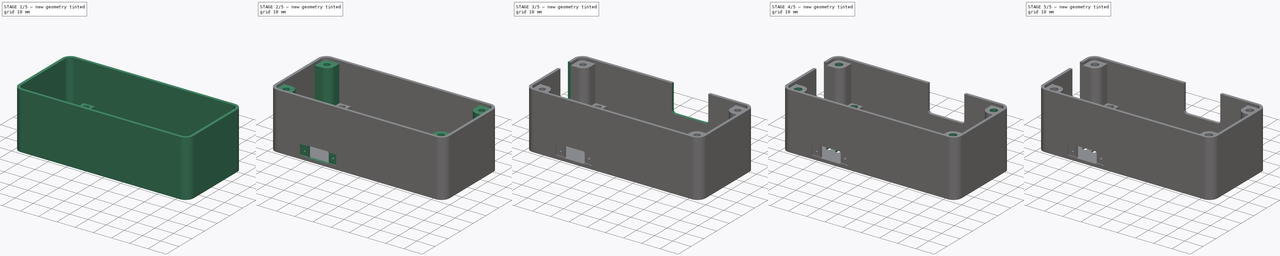
[diagram: build sequence overview — one tinted view per stage of 5, left to right]
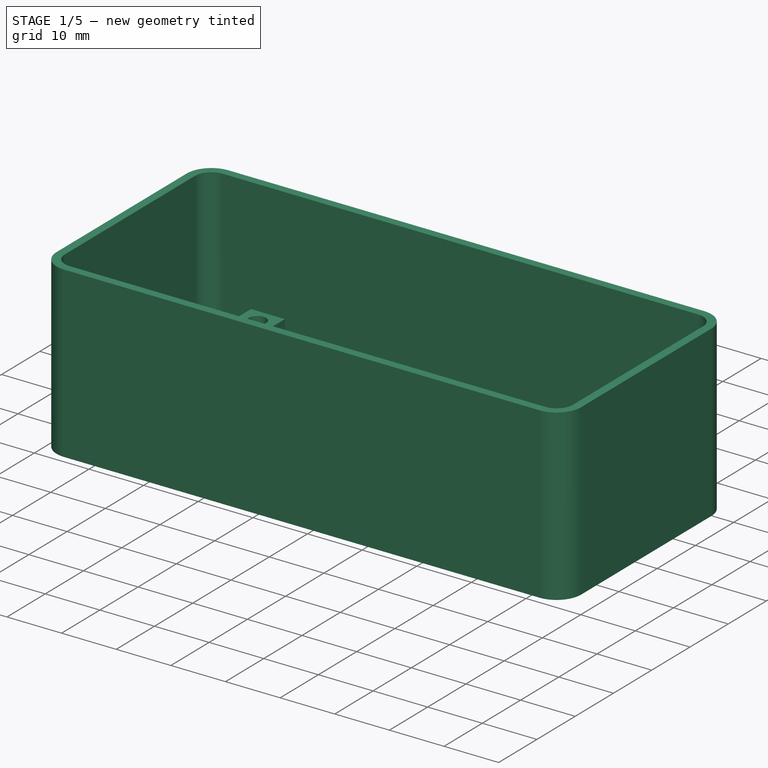
[diagram: stage 1 of 5 — iso view after this stage's code; geometry added in this stage tinted green]
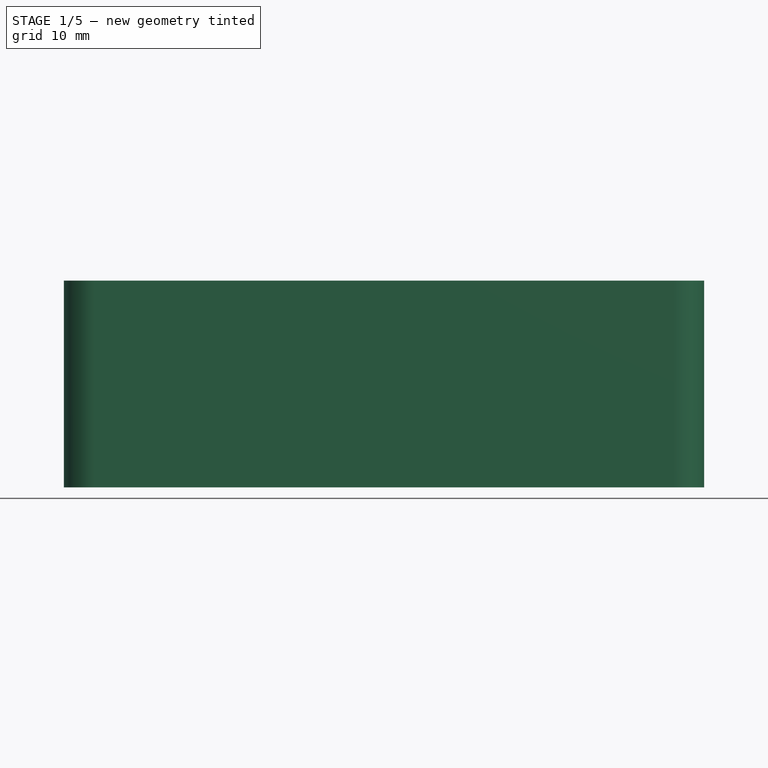
[diagram: stage 1 of 5 — front view after this stage's code; geometry added in this stage tinted green]
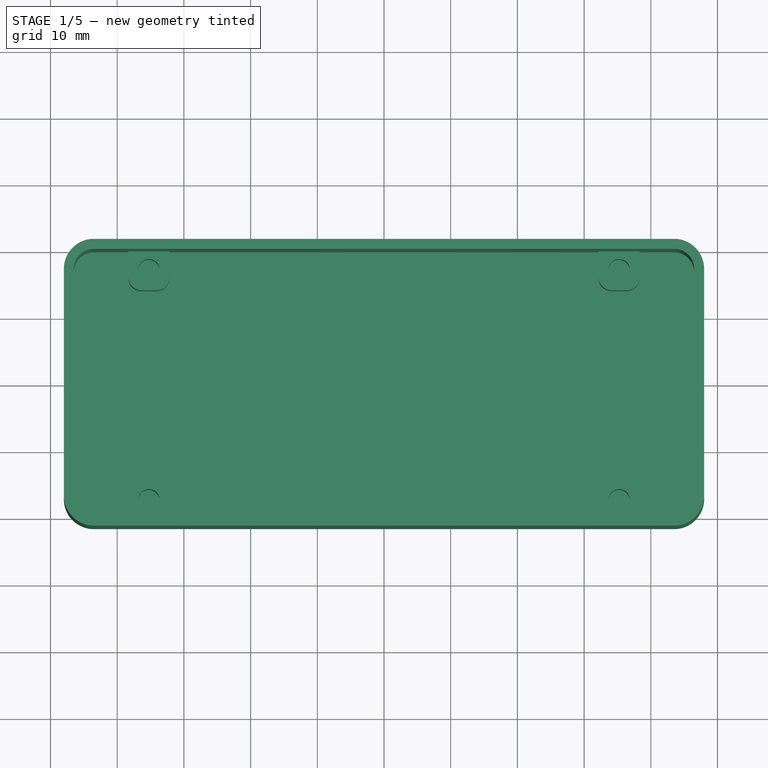
[diagram: stage 1 of 5 — top view after this stage's code; geometry added in this stage tinted green]
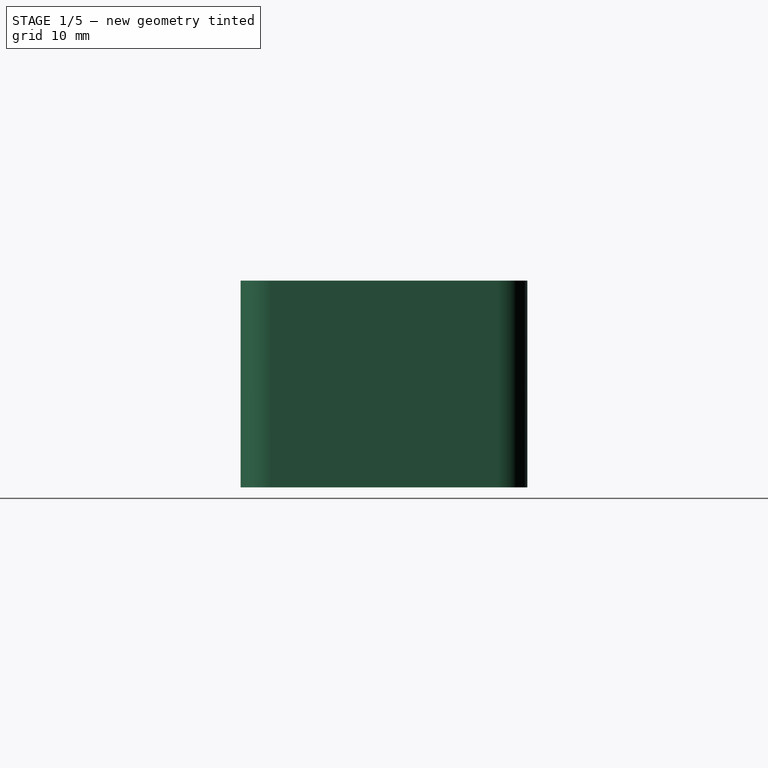
[diagram: stage 1 of 5 — right view after this stage's code; geometry added in this stage tinted green]
FCSTD DOCUMENT  (FreeCAD 0.20R29410 (Git))
Label: Bottom
License: All rights reserved
LicenseURL: http://en.wikipedia.org/wiki/All_rights_reserved
objects: Sketcher::SketchObject×17, PartDesign::Pocket×12, PartDesign::Pad×4, PartDesign::LinearPattern×1, PartDesign::Body×1
note: 51 computed .brp shape members not serialized (recipe doc carries the construction recipe); baked Part::Feature solids carry a one-line shape summary decoded from their .brp

FEATURE [Sketcher::SketchObject] Sketch
  FullyConstrained = true
  MapMode = 5
  Support = -> [XY_Plane]
  sketch-geometry (20):
    g0: LineSegment StartX=-35 StartY=20 StartZ=0 EndX=35 EndY=20 EndZ=0
    g1: LineSegment StartX=38 StartY=17 StartZ=0 EndX=38 EndY=-17 EndZ=0
    g2: LineSegment StartX=35 StartY=-20 StartZ=0 EndX=-35 EndY=-20 EndZ=0
    g3: LineSegment StartX=-38 StartY=-17 StartZ=0 EndX=-38 EndY=17 EndZ=0
    g4: ArcOfCircle CenterX=-35 CenterY=17 CenterZ=0 NormalX=0 NormalY=0 NormalZ=1 AngleXU=0 Radius=3 StartAngle=1.5708 EndAngle=3.14159
    g5: ArcOfCircle CenterX=35 CenterY=17 CenterZ=0 NormalX=0 NormalY=0 NormalZ=1 AngleXU=0 Radius=3 StartAngle=0 EndAngle=1.5708
    g6: ArcOfCircle CenterX=35 CenterY=-17 CenterZ=0 NormalX=0 NormalY=0 NormalZ=1 AngleXU=0 Radius=3 StartAngle=4.71239 EndAngle=6.28319
    g7: ArcOfCircle CenterX=-35 CenterY=-17 CenterZ=0 NormalX=0 NormalY=0 NormalZ=1 AngleXU=0 Radius=3 StartAngle=3.14159 EndAngle=4.71239
    g8: LineSegment StartX=-43.5 StartY=21.5 StartZ=0 EndX=43.5 EndY=21.5 EndZ=0
    g9: LineSegment StartX=48 StartY=17 StartZ=0 EndX=48 EndY=-17 EndZ=0
    g10: LineSegment StartX=43.5 StartY=-21.5 StartZ=0 EndX=-43.5 EndY=-21.5 EndZ=0
    g11: LineSegment StartX=-48 StartY=-17 StartZ=0 EndX=-48 EndY=17 EndZ=0
    g12: ArcOfCircle CenterX=43.5 CenterY=17 CenterZ=0 NormalX=0 NormalY=0 NormalZ=1 AngleXU=0 Radius=4.5 StartAngle=0 EndAngle=1.5708
    g13: GeomPoint X=48 Y=21.5 Z=0
    g14: ArcOfCircle CenterX=43.5 CenterY=-17 CenterZ=0 NormalX=0 NormalY=0 NormalZ=1 AngleXU=0 Radius=4.5 StartAngle=4.71239 EndAngle=6.28319
    g15: GeomPoint X=48 Y=-21.5 Z=0
    g16: ArcOfCircle CenterX=-43.5 CenterY=-17 CenterZ=0 NormalX=0 NormalY=0 NormalZ=1 AngleXU=0 Radius=4.5 StartAngle=3.14159 EndAngle=4.71239
    g17: GeomPoint X=-48 Y=-21.5 Z=0
    g18: ArcOfCircle CenterX=-43.5 CenterY=17 CenterZ=0 NormalX=0 NormalY=0 NormalZ=1 AngleXU=0 Radius=4.5 StartAngle=1.5708 EndAngle=3.14159
    g19: GeomPoint X=-48 Y=21.5 Z=0
  constraints (46):
    c: Horizontal(g0)
    c: Horizontal(g2)
    c: Vertical(g1)
    c: Vertical(g3)
    c: Tangent(g3,g4) = 1.5708
    c: Tangent(g0,g4) = 1.5708
    c: Tangent(g0,g5) = 1.5708
    c: Tangent(g1,g5) = 1.5708
    c: Tangent(g2,g6) = 1.5708
    c: Tangent(g1,g6) = 1.5708
    c: Tangent(g3,g7) = 1.5708
    c: Tangent(g2,g7) = 1.5708
    c: Equal(g7,g4)
    c: Equal(g4,g5)
    c: Equal(g5,g6)
    c: Radius(g5) = 3
    c: Symmetric(g4,g6,g-1)
    c: DistanceY(g2,g0) = 40
    c: DistanceX(g3,g1) = 76
    c: Horizontal(g8)
    c: Horizontal(g10)
    c: Vertical(g9)
    c: Vertical(g11)
    c: Symmetric(g19,g15,g-1)
    c: PointOnObject(g13,g8)
    c: PointOnObject(g13,g9)
    c: Tangent(g8,g12) = 1.5708
    c: Tangent(g9,g12) = 1.5708
    c: PointOnObject(g15,g9)
    c: PointOnObject(g15,g10)
    c: Tangent(g9,g14) = 1.5708
    c: Tangent(g10,g14) = 1.5708
    c: PointOnObject(g17,g11)
    c: PointOnObject(g17,g10)
    c: Tangent(g11,g16) = 1.5708
    c: Tangent(g10,g16) = 1.5708
    c: PointOnObject(g19,g11)
    c: PointOnObject(g19,g8)
    c: Tangent(g11,g18) = 1.5708
    c: Tangent(g8,g18) = 1.5708
    c: Equal(g12,g14)
    c: Equal(g14,g16)
    c: Equal(g16,g18)
    c: DistanceY(g0,g8) = 1.5
    c: Horizontal(g11,g3)
    c: DistanceX(g1,g9) = 10
FEATURE [PartDesign::Pad] Pad
  Direction = (0,0,1)
  Length = 31
  Length2 = 10
  Profile = -> Sketch
  ReferenceAxis = -> Sketch [N_Axis]
  Type = 0
FEATURE [Sketcher::SketchObject] Sketch001
  ExternalGeometry = -> [Pad]
  FullyConstrained = true
  MapMode = 5
  Placement = pos=(0,0,31) rot=(0,0,1;0rad)
  Support = -> [Pad]
  sketch-geometry (12):
    g0: LineSegment StartX=-43.5 StartY=20 StartZ=0 EndX=43.5 EndY=20 EndZ=0
    g1: LineSegment StartX=46.5 StartY=17 StartZ=0 EndX=46.5 EndY=-17 EndZ=0
    g2: LineSegment StartX=43.5 StartY=-20 StartZ=0 EndX=-43.5 EndY=-20 EndZ=0
    g3: LineSegment StartX=-46.5 StartY=-17 StartZ=0 EndX=-46.5 EndY=17 EndZ=0
    g4: ArcOfCircle CenterX=-43.5 CenterY=17 CenterZ=0 NormalX=0 NormalY=0 NormalZ=1 AngleXU=0 Radius=3 StartAngle=1.5708 EndAngle=3.14159
    g5: GeomPoint X=-46.5 Y=20 Z=0
    g6: ArcOfCircle CenterX=-43.5 CenterY=-17 CenterZ=0 NormalX=0 NormalY=0 NormalZ=1 AngleXU=0 Radius=3 StartAngle=3.14159 EndAngle=4.71239
    g7: GeomPoint X=-46.5 Y=-20 Z=0
    g8: ArcOfCircle CenterX=43.5 CenterY=-17 CenterZ=0 NormalX=0 NormalY=0 NormalZ=1 AngleXU=0 Radius=3 StartAngle=4.71239 EndAngle=6.28319
    g9: GeomPoint X=46.5 Y=-20 Z=0
    g10: ArcOfCircle CenterX=43.5 CenterY=17 CenterZ=0 NormalX=0 NormalY=0 NormalZ=1 AngleXU=0 Radius=3 StartAngle=-9e-16 EndAngle=1.5708
    g11: GeomPoint X=46.5 Y=20 Z=0
  constraints (29):
    c: Horizontal(g0)
    c: Horizontal(g2)
    c: Vertical(g1)
    c: Vertical(g3)
    c: Symmetric(g11,g7,g-1)
    c: PointOnObject(g5,g3)
    c: PointOnObject(g5,g0)
    c: Tangent(g3,g4) = 1.5708
    c: Tangent(g0,g4) = 1.5708
    c: PointOnObject(g7,g3)
    c: PointOnObject(g7,g2)
    c: Tangent(g3,g6) = 1.5708
    c: Tangent(g2,g6) = 1.5708
    c: PointOnObject(g9,g2)
    c: PointOnObject(g9,g1)
    c: Tangent(g2,g8) = 1.5708
    c: Tangent(g1,g8) = 1.5708
    c: PointOnObject(g11,g0)
    c: PointOnObject(g11,g1)
    c: Tangent(g0,g10) = 1.5708
    c: Tangent(g1,g10) = 1.5708
    c: Equal(g10,g8)
    c: Equal(g8,g6)
    c: Equal(g6,g4)
    c: Coincident(g10,g-5)
    c: DistanceY(g0,g-5) = 1.5
    c: DistanceY(g2,g0) = 40
    c: DistanceX(g3,g1) = 93
    c: Diameter(g10) = 6
FEATURE [PartDesign::Pocket] Pocket
  BaseFeature = -> Pad
  Direction = (0,0,-1)
  Length = 30
  Length2 = 5
  Profile = -> Sketch001
  ReferenceAxis = -> Sketch001 [N_Axis]
  Type = 0
FEATURE [Sketcher::SketchObject] Sketch002
  ExternalGeometry = -> [Pocket]
  FullyConstrained = true
  MapMode = 5
  Placement = pos=(0,0,1) rot=(0,0,1;0rad)
  Support = -> [Pocket]
  sketch-geometry (39):
    g0: Circle CenterX=35.25 CenterY=17.25 CenterZ=0 NormalX=0 NormalY=0 NormalZ=1 AngleXU=0 Radius=1.6
    g1: Circle CenterX=-35.25 CenterY=17.25 CenterZ=0 NormalX=0 NormalY=0 NormalZ=1 AngleXU=0 Radius=1.6
    g2: Circle CenterX=-35.25 CenterY=-17.25 CenterZ=0 NormalX=0 NormalY=0 NormalZ=1 AngleXU=0 Radius=1.6
    g3: Circle CenterX=35.25 CenterY=-17.25 CenterZ=0 NormalX=0 NormalY=0 NormalZ=1 AngleXU=0 Radius=1.6
    g4: LineSegment StartX=-38.35 StartY=20 StartZ=0 EndX=-32.15 EndY=20 EndZ=0
    g5: LineSegment StartX=-32.15 StartY=20 StartZ=0 EndX=-32.15 EndY=16.15 EndZ=0
    g6: LineSegment StartX=-34.15 StartY=14.15 StartZ=0 EndX=-36.35 EndY=14.15 EndZ=0
    g7: LineSegment StartX=-38.35 StartY=16.15 StartZ=0 EndX=-38.35 EndY=20 EndZ=0
    g8: LineSegment StartX=32.15 StartY=20 StartZ=0 EndX=38.35 EndY=20 EndZ=0
    g9: LineSegment StartX=38.35 StartY=20 StartZ=0 EndX=38.35 EndY=16.15 EndZ=0
    g10: LineSegment StartX=36.35 StartY=14.15 StartZ=0 EndX=34.15 EndY=14.15 EndZ=0
    g11: LineSegment StartX=32.15 StartY=16.15 StartZ=0 EndX=32.15 EndY=20 EndZ=0
    g12: LineSegment StartX=-34.15 StartY=-14.15 StartZ=0 EndX=-36.35 EndY=-14.15 EndZ=0
    g13: LineSegment StartX=-38.35 StartY=-16.15 StartZ=0 EndX=-38.35 EndY=-20 EndZ=0
    g14: LineSegment StartX=-38.35 StartY=-20 StartZ=0 EndX=-32.15 EndY=-20 EndZ=0
    g15: LineSegment StartX=-32.15 StartY=-20 StartZ=0 EndX=-32.15 EndY=-16.15 EndZ=0
    g16: LineSegment StartX=34.15 StartY=-14.15 StartZ=0 EndX=36.35 EndY=-14.15 EndZ=0
    g17: LineSegment StartX=38.35 StartY=-16.15 StartZ=0 EndX=38.35 EndY=-20 EndZ=0
    g18: LineSegment StartX=38.35 StartY=-20 StartZ=0 EndX=32.15 EndY=-20 EndZ=0
    g19: LineSegment StartX=32.15 StartY=-20 StartZ=0 EndX=32.15 EndY=-16.15 EndZ=0
    g20: ArcOfCircle CenterX=-36.35 CenterY=-16.15 CenterZ=0 NormalX=0 NormalY=0 NormalZ=1 AngleXU=0 Radius=2 StartAngle=1.5708 EndAngle=3.14159
    g21: GeomPoint X=-38.35 Y=-14.15 Z=0
    g22: ArcOfCircle CenterX=-34.15 CenterY=-16.15 CenterZ=0 NormalX=0 NormalY=0 NormalZ=1 AngleXU=0 Radius=2 StartAngle=8e-16 EndAngle=1.5708
    g23: GeomPoint X=-32.15 Y=-14.15 Z=0
    g24: ArcOfCircle CenterX=34.15 CenterY=-16.15 CenterZ=0 NormalX=0 NormalY=0 NormalZ=1 AngleXU=0 Radius=2 StartAngle=1.5708 EndAngle=3.14159
    g25: GeomPoint X=32.15 Y=-14.15 Z=0
    g26: ArcOfCircle CenterX=36.35 CenterY=-16.15 CenterZ=0 NormalX=0 NormalY=0 NormalZ=1 AngleXU=0 Radius=2 StartAngle=-9e-16 EndAngle=1.5708
    g27: GeomPoint X=38.35 Y=-14.15 Z=0
    g28: ArcOfCircle CenterX=34.15 CenterY=16.15 CenterZ=0 NormalX=0 NormalY=0 NormalZ=1 AngleXU=0 Radius=2 StartAngle=3.14159 EndAngle=4.71239
    g29: GeomPoint X=32.15 Y=14.15 Z=0
    g30: ArcOfCircle CenterX=36.35 CenterY=16.15 CenterZ=0 NormalX=0 NormalY=0 NormalZ=1 AngleXU=0 Radius=2 StartAngle=4.71239 EndAngle=6.28319
    g31: GeomPoint X=38.35 Y=14.15 Z=0
    g32: ArcOfCircle CenterX=-34.15 CenterY=16.15 CenterZ=0 NormalX=0 NormalY=0 NormalZ=1 AngleXU=0 Radius=2 StartAngle=4.71239 EndAngle=6.28319
    g33: GeomPoint X=-32.15 Y=14.15 Z=0
    g34: ArcOfCircle CenterX=-36.35 CenterY=16.15 CenterZ=0 NormalX=0 NormalY=0 NormalZ=1 AngleXU=0 Radius=2 StartAngle=3.14159 EndAngle=4.71239
    g35: GeomPoint X=-38.35 Y=14.15 Z=0
    g36: LineSegment StartX=-35.25 StartY=-14.15 StartZ=0 EndX=-35.25 EndY=-20 EndZ=0
    g37: GeomPoint X=-35.25 Y=-15.65 Z=0
    g38: GeomPoint X=-33.65 Y=-17.25 Z=0
  constraints (95):
    c: Equal(g1,g0)
    c: Equal(g0,g3)
    c: Equal(g3,g2)
    c: Diameter(g2) = 3.2
    c: Symmetric(g1,g3,g-1)
    c: Symmetric(g2,g0,g-1)
    c: DistanceX(g1,g0) = 70.5
    c: DistanceY(g2,g1) = 34.5
    c: Vertical(g3,g0)
    c: Horizontal(g0,g1)
    c: Coincident(g4,g5)
    c: Coincident(g7,g4)
    c: Horizontal(g4)
    c: Horizontal(g6)
    c: Vertical(g5)
    c: Vertical(g7)
    c: Coincident(g8,g9)
    c: Coincident(g11,g8)
    c: Horizontal(g8)
    c: Horizontal(g10)
    c: Vertical(g9)
    c: Vertical(g11)
    c: Coincident(g13,g14)
    c: Coincident(g14,g15)
    c: Horizontal(g12)
    c: Horizontal(g14)
    c: Vertical(g13)
    c: Vertical(g15)
    c: Coincident(g17,g18)
    c: Coincident(g18,g19)
    c: Horizontal(g16)
    c: Horizontal(g18)
    c: Vertical(g17)
    c: Vertical(g19)
    c: PointOnObject(g21,g13)
    c: PointOnObject(g21,g12)
    c: Tangent(g13,g20) = -1.5708
    c: Tangent(g12,g20) = -1.5708
    c: PointOnObject(g23,g12)
    c: PointOnObject(g23,g15)
    c: Tangent(g12,g22) = -1.5708
    c: Tangent(g15,g22) = -1.5708
    c: PointOnObject(g25,g19)
    c: PointOnObject(g25,g16)
    c: Tangent(g19,g24) = 1.5708
    c: Tangent(g16,g24) = 1.5708
    c: PointOnObject(g27,g16)
    c: PointOnObject(g27,g17)
    c: Tangent(g16,g26) = 1.5708
    c: Tangent(g17,g26) = 1.5708
    c: PointOnObject(g29,g11)
    c: PointOnObject(g29,g10)
    c: Tangent(g11,g28) = 1.5708
    c: Tangent(g10,g28) = 1.5708
    c: PointOnObject(g31,g10)
    c: PointOnObject(g31,g9)
    c: Tangent(g10,g30) = 1.5708
    c: Tangent(g9,g30) = 1.5708
    c: PointOnObject(g33,g6)
    c: PointOnObject(g33,g5)
    c: Tangent(g6,g32) = 1.5708
    c: Tangent(g5,g32) = 1.5708
    c: PointOnObject(g35,g7)
    c: PointOnObject(g35,g6)
    c: Tangent(g7,g34) = 1.5708
    c: Tangent(g6,g34) = 1.5708
    c: Equal(g34,g32)
    c: Equal(g32,g28)
    c: Equal(g28,g30)
    c: Equal(g30,g24)
    c: Equal(g24,g26)
    c: Equal(g26,g22)
    c: Equal(g22,g20)
    c: PointOnObject(g14,g-4)
    c: PointOnObject(g18,g-4)
    c: Diameter(g20) = 4
    c: PointOnObject(g36,g14)
    c: Vertical(g36)
    c: Symmetric(g12,g12,g36)
    c: Equal(g10,g16)
    c: Equal(g16,g6)
    c: Equal(g6,g12)
    c: PointOnObject(g4,g-5)
    c: Equal(g5,g15)
    c: Equal(g7,g11)
    c: Symmetric(g23,g25,g-2)
    c: Symmetric(g4,g8,g-2)
    c: Vertical(g21,g35)
    c: PointOnObject(g2,g36)
    c: PointOnObject(g37,g2)
    c: PointOnObject(g37,g36)
    c: DistanceY(g37,g36) = 1.5
    c: PointOnObject(g38,g2)
    c: Horizontal(g38,g2)
    c: DistanceX(g38,g15) = 1.5
FEATURE [PartDesign::Pad] Pad001
  BaseFeature = -> Pocket
  Direction = (0,0,1)
  Length = 9
  Length2 = 10
  Profile = -> Sketch002
  ReferenceAxis = -> Sketch002 [N_Axis]
  Type = 0
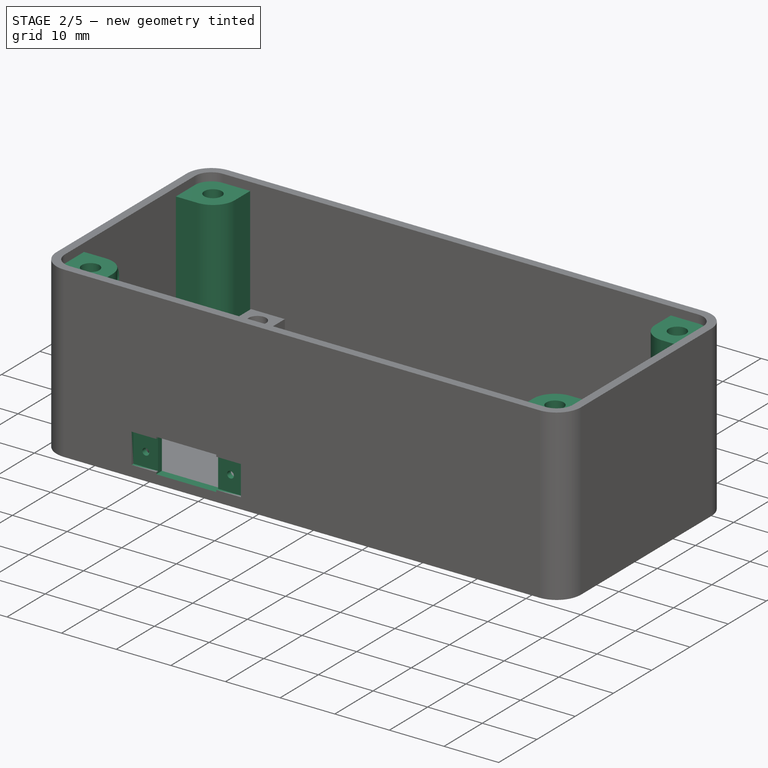
[diagram: stage 2 of 5 — iso view after this stage's code; geometry added in this stage tinted green]
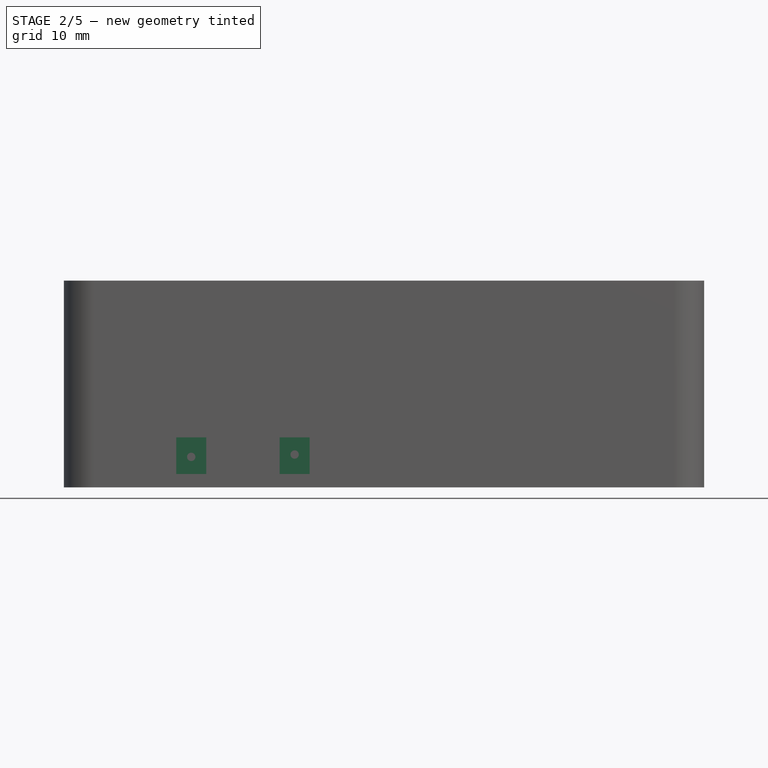
[diagram: stage 2 of 5 — front view after this stage's code; geometry added in this stage tinted green]
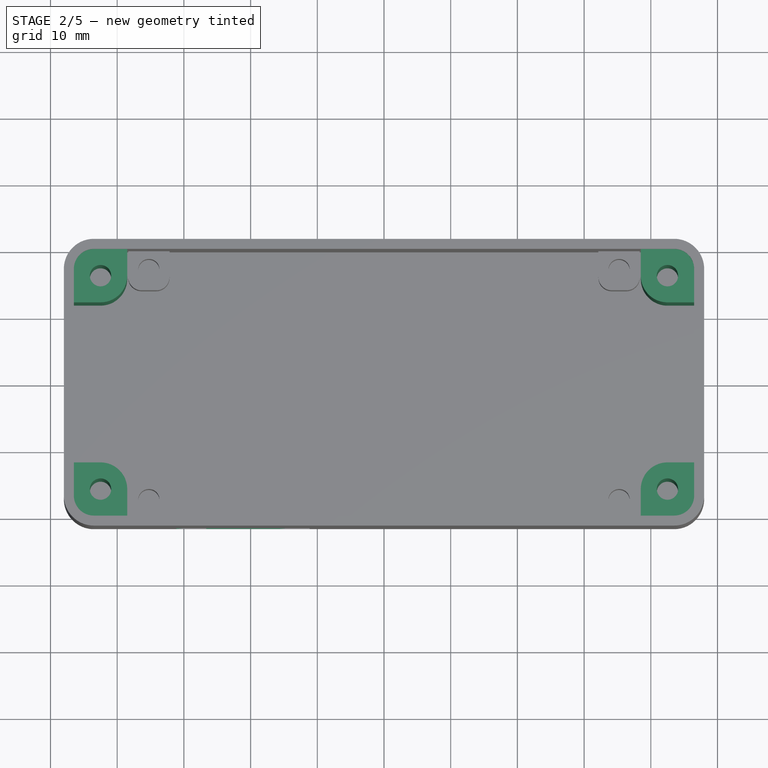
[diagram: stage 2 of 5 — top view after this stage's code; geometry added in this stage tinted green]
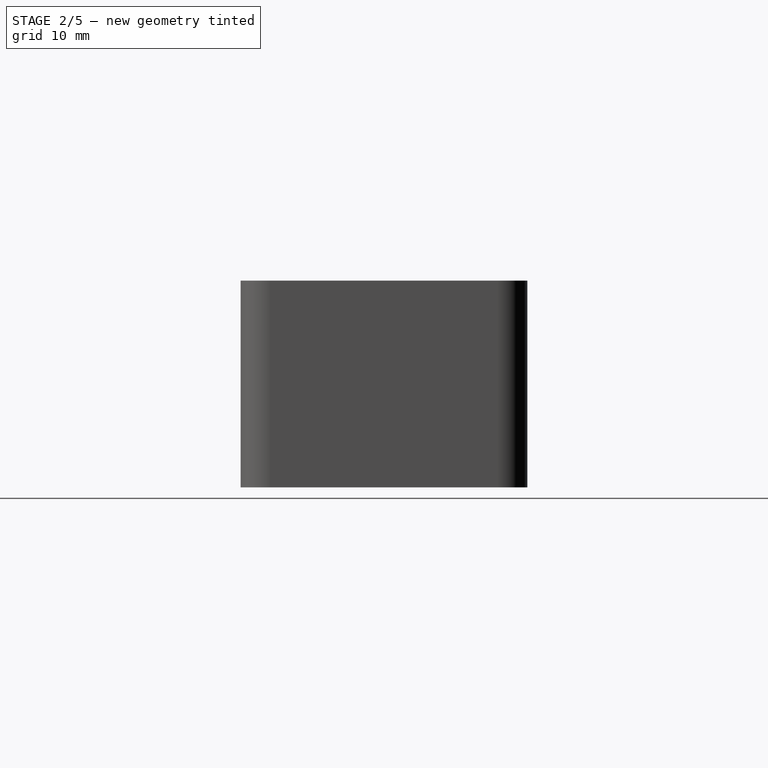
[diagram: stage 2 of 5 — right view after this stage's code; geometry added in this stage tinted green]
FEATURE [Sketcher::SketchObject] Sketch003
  ExternalGeometry = -> [Pad001]
  FullyConstrained = false
  MapMode = 5
  Placement = pos=(0,0,10) rot=(0,0,1;0rad)
  Support = -> [Pad001]
  sketch-geometry (4):
    g0: Circle CenterX=32.15 CenterY=-20 CenterZ=0 NormalX=0 NormalY=0 NormalZ=1 AngleXU=0 Radius=1.7
    g1: Circle CenterX=-35 CenterY=-17 CenterZ=0 NormalX=0 NormalY=0 NormalZ=1 AngleXU=0 Radius=1.7
    g2: Circle CenterX=-32.15 CenterY=20 CenterZ=0 NormalX=0 NormalY=0 NormalZ=1 AngleXU=0 Radius=1.7
    g3: Circle CenterX=35 CenterY=17 CenterZ=0 NormalX=0 NormalY=0 NormalZ=1 AngleXU=0 Radius=1.7
  constraints (6):
    c: Coincident(g0,g-6)
    c: Coincident(g2,g-3)
    c: Equal(g3,g2)
    c: Equal(g2,g1)
    c: Equal(g1,g0)
    c: Diameter(g0) = 3.4
FEATURE [Sketcher::SketchObject] Sketch004
  ExternalGeometry = -> [Pad001]
  FullyConstrained = true
  MapMode = 5
  Placement = pos=(0,0,1) rot=(0,0,1;0rad)
  Support = -> [Pad001]
  sketch-geometry (36):
    g0: LineSegment StartX=-38.5 StartY=20 StartZ=0 EndX=-43.5 EndY=20 EndZ=0
    g1: LineSegment StartX=-46.5 StartY=17 StartZ=0 EndX=-46.5 EndY=12 EndZ=0
    g2: LineSegment StartX=-46.5 StartY=12 StartZ=0 EndX=-42.5 EndY=12 EndZ=0
    g3: LineSegment StartX=-38.5 StartY=16 StartZ=0 EndX=-38.5 EndY=20 EndZ=0
    g4: LineSegment StartX=38.5 StartY=20 StartZ=0 EndX=43.5 EndY=20 EndZ=0
    g5: LineSegment StartX=46.5 StartY=17 StartZ=0 EndX=46.5 EndY=12 EndZ=0
    g6: LineSegment StartX=46.5 StartY=12 StartZ=0 EndX=42.5 EndY=12 EndZ=0
    g7: LineSegment StartX=38.5 StartY=16 StartZ=0 EndX=38.5 EndY=20 EndZ=0
    g8: LineSegment StartX=-46.5 StartY=-12 StartZ=0 EndX=-42.5 EndY=-12 EndZ=0
    g9: LineSegment StartX=-38.5 StartY=-16 StartZ=0 EndX=-38.5 EndY=-20 EndZ=0
    g10: LineSegment StartX=-38.5 StartY=-20 StartZ=0 EndX=-43.5 EndY=-20 EndZ=0
    g11: LineSegment StartX=-46.5 StartY=-17 StartZ=0 EndX=-46.5 EndY=-12 EndZ=0
    g12: LineSegment StartX=42.5 StartY=-12 StartZ=0 EndX=46.5 EndY=-12 EndZ=0
    g13: LineSegment StartX=46.5 StartY=-12 StartZ=0 EndX=46.5 EndY=-17 EndZ=0
    g14: LineSegment StartX=43.5 StartY=-20 StartZ=0 EndX=38.5 EndY=-20 EndZ=0
    g15: LineSegment StartX=38.5 StartY=-20 StartZ=0 EndX=38.5 EndY=-16 EndZ=0
    g16: Circle CenterX=-42.5 CenterY=16 CenterZ=0 NormalX=0 NormalY=0 NormalZ=1 AngleXU=0 Radius=1.6
    g17: Circle CenterX=42.5 CenterY=16 CenterZ=0 NormalX=0 NormalY=0 NormalZ=1 AngleXU=0 Radius=1.6
    g18: Circle CenterX=-42.5 CenterY=-16 CenterZ=0 NormalX=0 NormalY=0 NormalZ=1 AngleXU=0 Radius=1.6
    g19: Circle CenterX=42.5 CenterY=-16 CenterZ=0 NormalX=0 NormalY=0 NormalZ=1 AngleXU=0 Radius=1.6
    g20: ArcOfCircle CenterX=-42.5 CenterY=-16 CenterZ=0 NormalX=0 NormalY=0 NormalZ=1 AngleXU=0 Radius=4 StartAngle=0 EndAngle=1.5708
    g21: GeomPoint X=-38.5 Y=-12 Z=0
    g22: ArcOfCircle CenterX=42.5 CenterY=-16 CenterZ=0 NormalX=0 NormalY=0 NormalZ=1 AngleXU=0 Radius=4 StartAngle=1.5708 EndAngle=3.14159
    g23: GeomPoint X=38.5 Y=-12 Z=0
    g24: ArcOfCircle CenterX=-42.5 CenterY=16 CenterZ=0 NormalX=0 NormalY=0 NormalZ=1 AngleXU=0 Radius=4 StartAngle=4.71239 EndAngle=6.28319
    g25: GeomPoint X=-38.5 Y=12 Z=0
    g26: ArcOfCircle CenterX=42.5 CenterY=16 CenterZ=0 NormalX=0 NormalY=0 NormalZ=1 AngleXU=0 Radius=4 StartAngle=3.14159 EndAngle=4.71239
    g27: GeomPoint X=38.5 Y=12 Z=0
    g28: ArcOfCircle CenterX=-43.5 CenterY=17 CenterZ=0 NormalX=0 NormalY=0 NormalZ=1 AngleXU=0 Radius=3 StartAngle=1.5708 EndAngle=3.14159
    g29: GeomPoint X=-46.5 Y=20 Z=0
    g30: ArcOfCircle CenterX=43.5 CenterY=-17 CenterZ=0 NormalX=0 NormalY=0 NormalZ=1 AngleXU=0 Radius=3 StartAngle=4.71239 EndAngle=6.28319
    g31: GeomPoint X=46.5 Y=-20 Z=0
    g32: ArcOfCircle CenterX=43.5 CenterY=17 CenterZ=0 NormalX=0 NormalY=0 NormalZ=1 AngleXU=0 Radius=3 StartAngle=-9e-16 EndAngle=1.5708
    g33: GeomPoint X=46.5 Y=20 Z=0
    g34: ArcOfCircle CenterX=-43.5 CenterY=-17 CenterZ=0 NormalX=0 NormalY=0 NormalZ=1 AngleXU=0 Radius=3 StartAngle=3.14159 EndAngle=4.71239
    g35: GeomPoint X=-46.5 Y=-20 Z=0
  constraints (84):
    c: Coincident(g1,g2)
    c: Coincident(g3,g0)
    c: Horizontal(g2)
    c: Vertical(g1)
    c: Vertical(g3)
    c: Coincident(g5,g6)
    c: Coincident(g7,g4)
    c: Horizontal(g4)
    c: Horizontal(g6)
    c: Vertical(g5)
    c: Vertical(g7)
    c: Coincident(g9,g10)
    c: Horizontal(g8)
    c: Horizontal(g10)
    c: Vertical(g9)
    c: Vertical(g11)
    c: Coincident(g12,g13)
    c: Coincident(g14,g15)
    c: Horizontal(g12)
    c: Horizontal(g14)
    c: Vertical(g13)
    c: Vertical(g15)
    c: Equal(g19,g18)
    c: Equal(g18,g16)
    c: Equal(g16,g17)
    c: Diameter(g17) = 3.2
    c: Symmetric(g25,g29,g16)
    c: PointOnObject(g21,g8)
    c: PointOnObject(g21,g9)
    c: Tangent(g8,g20) = 1.5708
    c: Tangent(g9,g20) = 1.5708
    c: PointOnObject(g23,g15)
    c: PointOnObject(g23,g12)
    c: Tangent(g15,g22) = 1.5708
    c: Tangent(g12,g22) = 1.5708
    c: PointOnObject(g25,g2)
    c: PointOnObject(g25,g3)
    c: Tangent(g2,g24) = -1.5708
    c: Tangent(g3,g24) = -1.5708
    c: PointOnObject(g27,g7)
    c: PointOnObject(g27,g6)
    c: Tangent(g7,g26) = 1.5708
    c: Tangent(g6,g26) = 1.5708
    c: PointOnObject(g29,g1)
    c: PointOnObject(g29,g0)
    c: Tangent(g1,g28) = -1.5708
    c: Tangent(g0,g28) = -1.5708
    c: PointOnObject(g31,g13)
    c: PointOnObject(g31,g14)
    c: Tangent(g13,g30) = 1.5708
    c: Tangent(g14,g30) = 1.5708
    c: PointOnObject(g33,g4)
    c: PointOnObject(g33,g5)
    c: Tangent(g4,g32) = 1.5708
    c: Tangent(g5,g32) = 1.5708
    c: Coincident(g11,g8)
    c: PointOnObject(g35,g11)
    c: PointOnObject(g35,g10)
    c: Tangent(g11,g34) = 1.5708
    c: Tangent(g10,g34) = 1.5708
    c: Equal(g22,g20)
    c: Equal(g20,g26)
    c: Equal(g26,g24)
    c: Equal(g32,g30)
    c: Equal(g30,g34)
    c: Equal(g34,g28)
    c: Coincident(g24,g16)
    c: Diameter(g24) = 8
    c: Equal(g3,g7)
    c: Equal(g7,g6)
    c: Equal(g6,g12)
    c: Equal(g12,g15)
    c: Equal(g15,g9)
    c: Equal(g9,g8)
    c: Coincident(g18,g20)
    c: Coincident(g19,g22)
    c: Coincident(g17,g26)
    c: Coincident(g28,g-3)
    c: Coincident(g0,g-3)
    c: Symmetric(g16,g17,g-2)
    c: Symmetric(g18,g16,g-1)
    c: Symmetric(g19,g17,g-1)
    c: DistanceX(g16,g17) = 85
    c: DistanceY(g19,g17) = 32
FEATURE [PartDesign::Pad] Pad002
  BaseFeature = -> Pad001
  Direction = (0,0,1)
  Length = 28.5
  Length2 = 10
  Profile = -> Sketch004
  ReferenceAxis = -> Sketch004 [N_Axis]
  Type = 0
FEATURE [Sketcher::SketchObject] Sketch005
  ExternalGeometry = -> [Pad002]
  FullyConstrained = true
  MapMode = 5
  Placement = pos=(0,-21.5,0) rot=(1,0,0;1.5708rad)
  Support = -> [Pad002]
  sketch-geometry (4):
    g0: LineSegment StartX=-31.15 StartY=7.5 StartZ=0 EndX=-11.15 EndY=7.5 EndZ=0
    g1: LineSegment StartX=-11.15 StartY=7.5 StartZ=0 EndX=-11.15 EndY=2 EndZ=0
    g2: LineSegment StartX=-11.15 StartY=2 StartZ=0 EndX=-31.15 EndY=2 EndZ=0
    g3: LineSegment StartX=-31.15 StartY=2 StartZ=0 EndX=-31.15 EndY=7.5 EndZ=0
  constraints (12):
    c: Coincident(g0,g1)
    c: Coincident(g1,g2)
    c: Coincident(g2,g3)
    c: Coincident(g3,g0)
    c: Horizontal(g0)
    c: Horizontal(g2)
    c: Vertical(g1)
    c: Vertical(g3)
    c: DistanceX(g0,g0) = 20
    c: DistanceY(g1,g1) = 5.5
    c: DistanceY(g-4,g2) = 1
    c: DistanceX(g-4,g2) = 1
FEATURE [PartDesign::Pocket] Pocket001
  BaseFeature = -> Pad002
  Direction = (0,1,-2e-16)
  Length = 0.5
  Length2 = 5
  Profile = -> Sketch005
  ReferenceAxis = -> Sketch005 [N_Axis]
  Type = 0
FEATURE [Sketcher::SketchObject] Sketch006
  ExternalGeometry = -> [Pocket001]
  FullyConstrained = true
  MapMode = 5
  Placement = pos=(0,-21.5,0) rot=(1,0,0;1.5708rad)
  Support = -> [Pocket001]
  sketch-geometry (7):
    g0: GeomPoint X=-21.15 Y=4.75 Z=0
    g1: LineSegment StartX=-26.65 StartY=7.85 StartZ=0 EndX=-15.65 EndY=7.85 EndZ=0
    g2: LineSegment StartX=-15.65 StartY=7.85 StartZ=0 EndX=-15.65 EndY=1.65 EndZ=0
    g3: LineSegment StartX=-15.65 StartY=1.65 StartZ=0 EndX=-26.65 EndY=1.65 EndZ=0
    g4: LineSegment StartX=-26.65 StartY=1.65 StartZ=0 EndX=-26.65 EndY=7.85 EndZ=0
    g5: Circle CenterX=-28.9 CenterY=4.575 CenterZ=0 NormalX=0 NormalY=0 NormalZ=1 AngleXU=0 Radius=0.625
    g6: Circle CenterX=-13.4 CenterY=4.925 CenterZ=0 NormalX=0 NormalY=0 NormalZ=1 AngleXU=0 Radius=0.625
  constraints (16):
    c: Coincident(g1,g2)
    c: Coincident(g2,g3)
    c: Coincident(g3,g4)
    c: Coincident(g4,g1)
    c: Horizontal(g1)
    c: Horizontal(g3)
    c: Vertical(g2)
    c: Vertical(g4)
    c: Equal(g6,g5)
    c: Diameter(g5) = 1.25
    c: DistanceY(g2,g2) = 6.2
    c: DistanceX(g1,g1) = 11
    c: Symmetric(g1,g2,g0)
    c: Symmetric(g-3,g3,g5)
    c: Symmetric(g1,g-4,g6)
    c: Symmetric(g-4,g-3,g0)
FEATURE [PartDesign::Pocket] Pocket002
  BaseFeature = -> Pocket001
  Direction = (0,1,-2e-16)
  Length = 5
  Length2 = 5
  Profile = -> Sketch006
  ReferenceAxis = -> Sketch006 [N_Axis]
  Type = 0
FEATURE [Sketcher::SketchObject] Sketch007
  FullyConstrained = true
  MapMode = 5
  Placement = pos=(-48,0,0) rot=(0.57735,-0.57735,-0.57735;2.0944rad)
  Support = -> [Pocket002]
  sketch-geometry (3):
    g0: ArcOfCircle CenterX=6 CenterY=22 CenterZ=0 NormalX=0 NormalY=0 NormalZ=1 AngleXU=0 Radius=3.175 StartAngle=0.494934 EndAngle=5.78825
    g1: LineSegment StartX=8.794 StartY=23.508 StartZ=0 EndX=8.794 EndY=20.492 EndZ=0
    g2: GeomPoint X=2.825 Y=22 Z=0
  constraints (9):
    c: Vertical(g1)
    c: Coincident(g0,g1)
    c: Coincident(g0,g1)
    c: PointOnObject(g2,g0)
    c: Horizontal(g2,g0)
    c: Diameter(g0) = 6.35
    c: DistanceX(g2,g0) = 5.969
    c: DistanceY(g-1,g0) = 22
    c: DistanceX(g-1,g0) = 6
FEATURE [PartDesign::Pocket] Pocket003
  BaseFeature = -> Pocket002
  Direction = (1,0,0)
  Length = 5
  Length2 = 5
  Profile = -> Sketch007
  ReferenceAxis = -> Sketch007 [N_Axis]
  Type = 0
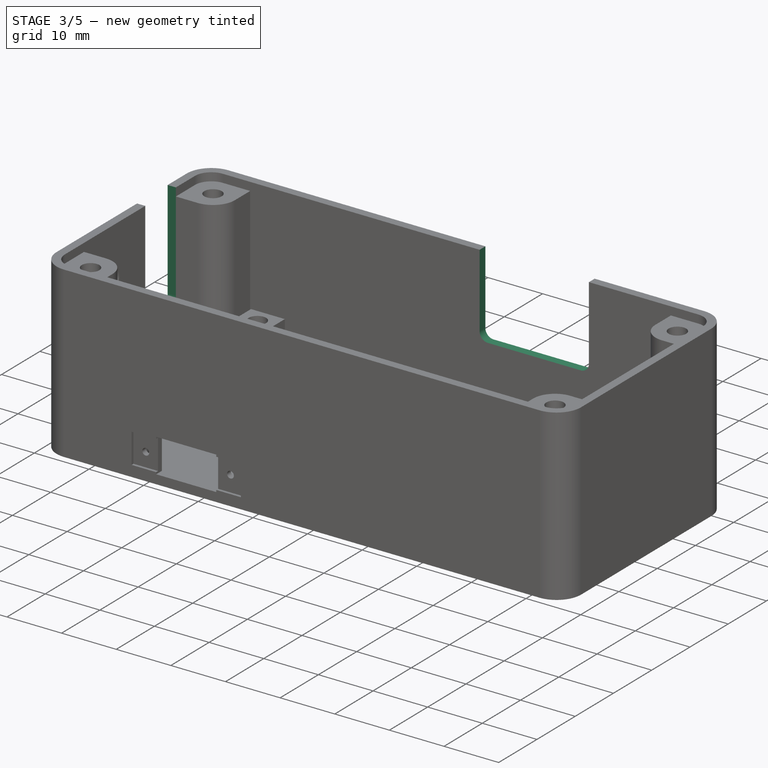
[diagram: stage 3 of 5 — iso view after this stage's code; geometry added in this stage tinted green]
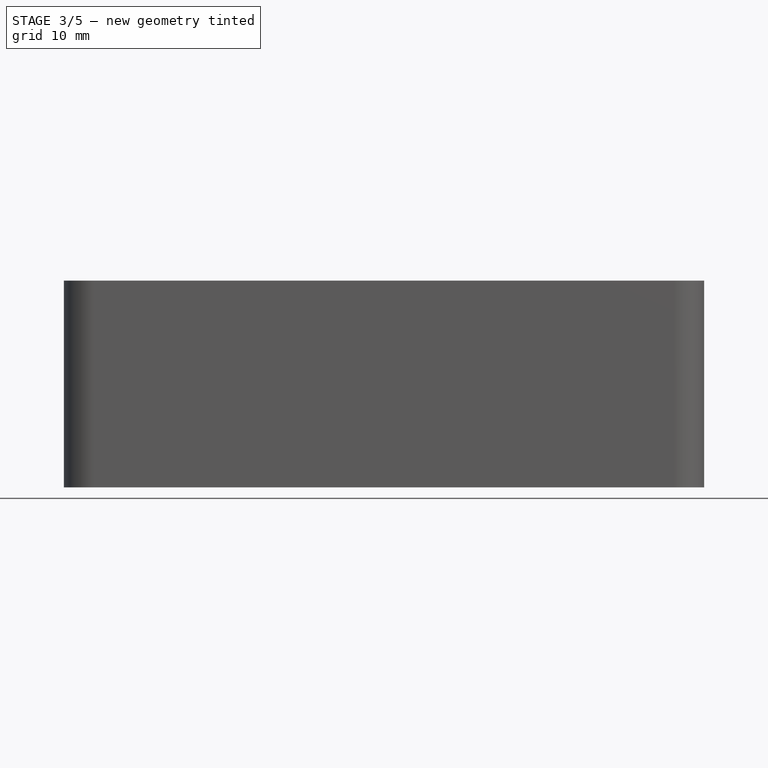
[diagram: stage 3 of 5 — front view after this stage's code; geometry added in this stage tinted green]
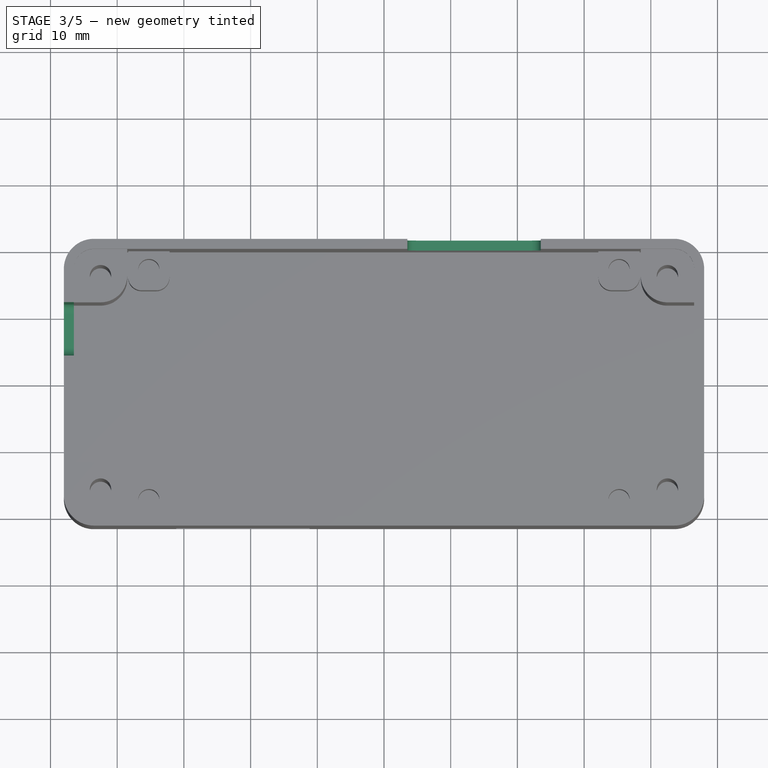
[diagram: stage 3 of 5 — top view after this stage's code; geometry added in this stage tinted green]
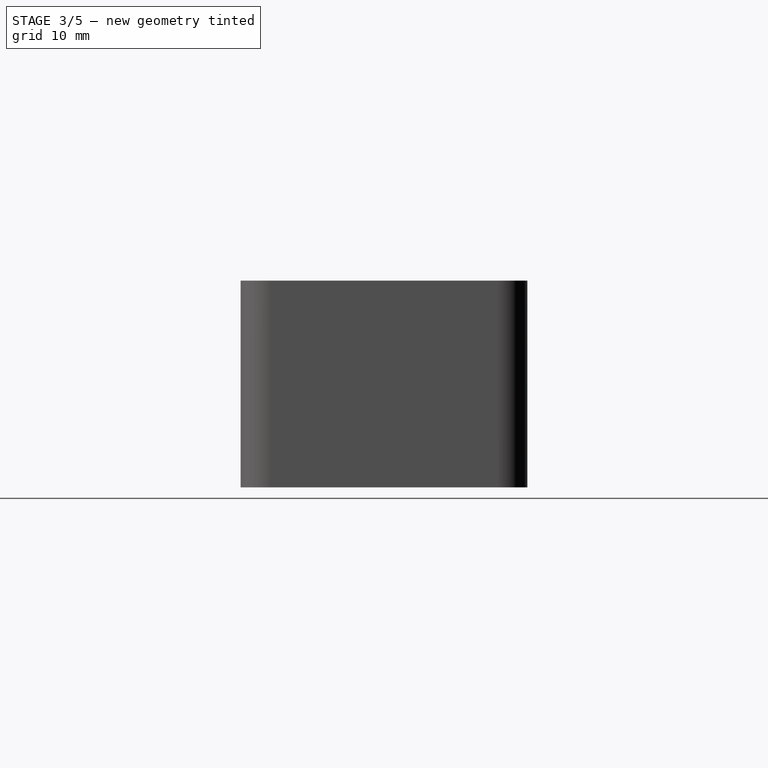
[diagram: stage 3 of 5 — right view after this stage's code; geometry added in this stage tinted green]
FEATURE [Sketcher::SketchObject] Sketch008
  ExternalGeometry = -> [Pocket003]
  FullyConstrained = true
  MapMode = 5
  Placement = pos=(0,21.5,0) rot=(0,0.707107,0.707107;3.14159rad)
  Support = -> [Pocket003]
  sketch-geometry (10):
    g0: LineSegment StartX=-23.5 StartY=31 StartZ=0 EndX=-3.5 EndY=31 EndZ=0
    g1: LineSegment StartX=-3.5 StartY=31 StartZ=0 EndX=-3.5 EndY=17.5 EndZ=0
    g2: LineSegment StartX=-5 StartY=16 StartZ=0 EndX=-22 EndY=16 EndZ=0
    g3: LineSegment StartX=-23.5 StartY=17.5 StartZ=0 EndX=-23.5 EndY=31 EndZ=0
    g4: ArcOfCircle CenterX=-22 CenterY=17.5 CenterZ=0 NormalX=0 NormalY=0 NormalZ=1 AngleXU=0 Radius=1.5 StartAngle=3.14159 EndAngle=4.71239
    g5: GeomPoint X=-23.5 Y=16 Z=0
    g6: ArcOfCircle CenterX=-5 CenterY=17.5 CenterZ=0 NormalX=0 NormalY=0 NormalZ=1 AngleXU=0 Radius=1.5 StartAngle=4.71239 EndAngle=6.28319
    g7: GeomPoint X=-3.5 Y=16 Z=0
    g8: GeomPoint X=-13.5 Y=31 Z=0
    g9: LineSegment StartX=38 StartY=31 StartZ=0 EndX=-38 EndY=31 EndZ=0
  constraints (24):
    c: Coincident(g0,g1)
    c: Coincident(g3,g0)
    c: Horizontal(g0)
    c: Horizontal(g2)
    c: Vertical(g1)
    c: Vertical(g3)
    c: PointOnObject(g0,g-3)
    c: PointOnObject(g5,g3)
    c: PointOnObject(g5,g2)
    c: Tangent(g3,g4) = 1.5708
    c: Tangent(g2,g4) = 1.5708
    c: PointOnObject(g7,g1)
    c: PointOnObject(g7,g2)
    c: Tangent(g1,g6) = 1.5708
    c: Tangent(g2,g6) = 1.5708
    c: Equal(g6,g4)
    c: Diameter(g6) = 3
    c: Symmetric(g0,g0,g8)
    c: Symmetric(g9,g9,g-2)
    c: DistanceX(g9,g9) = 76
    c: PointOnObject(g9,g-3)
    c: DistanceX(g9,g8) = 24.5
    c: DistanceY(g-5,g2) = 6
    c: DistanceX(g0,g0) = 20
FEATURE [PartDesign::Pocket] Pocket004
  BaseFeature = -> Pocket003
  Direction = (0,-1,2e-16)
  Length = 5
  Length2 = 5
  Profile = -> Sketch008
  ReferenceAxis = -> Sketch008 [N_Axis]
  Type = 0
FEATURE [Sketcher::SketchObject] Sketch009
  ExternalGeometry = -> [Pocket004]
  FullyConstrained = true
  MapMode = 5
  Placement = pos=(-48,0,0) rot=(0.57735,-0.57735,-0.57735;2.0944rad)
  Support = -> [Pocket004]
  sketch-geometry (8):
    g0: LineSegment StartX=-12 StartY=31 StartZ=0 EndX=-4 EndY=31 EndZ=0
    g1: LineSegment StartX=-4 StartY=31 StartZ=0 EndX=-4 EndY=13.1 EndZ=0
    g2: LineSegment StartX=-5.5 StartY=11.6 StartZ=0 EndX=-10.5 EndY=11.6 EndZ=0
    g3: LineSegment StartX=-12 StartY=13.1 StartZ=0 EndX=-12 EndY=31 EndZ=0
    g4: ArcOfCircle CenterX=-10.5 CenterY=13.1 CenterZ=0 NormalX=0 NormalY=0 NormalZ=1 AngleXU=0 Radius=1.5 StartAngle=3.14159 EndAngle=4.71239
    g5: GeomPoint X=-12 Y=11.6 Z=0
    g6: ArcOfCircle CenterX=-5.5 CenterY=13.1 CenterZ=0 NormalX=0 NormalY=0 NormalZ=1 AngleXU=0 Radius=1.5 StartAngle=4.71239 EndAngle=6.28319
    g7: GeomPoint X=-4 Y=11.6 Z=0
  constraints (20):
    c: Coincident(g0,g1)
    c: Coincident(g3,g0)
    c: Horizontal(g0)
    c: Horizontal(g2)
    c: Vertical(g1)
    c: Vertical(g3)
    c: PointOnObject(g0,g-3)
    c: PointOnObject(g5,g3)
    c: PointOnObject(g5,g2)
    c: Tangent(g3,g4) = 1.5708
    c: Tangent(g2,g4) = 1.5708
    c: PointOnObject(g7,g1)
    c: PointOnObject(g7,g2)
    c: Tangent(g1,g6) = 1.5708
    c: Tangent(g2,g6) = 1.5708
    c: Equal(g6,g4)
    c: Diameter(g6) = 3
    c: Vertical(g0,g-4)
    c: DistanceX(g0,g0) = 8
    c: DistanceY(g-5,g2) = 1.6
FEATURE [PartDesign::Pocket] Pocket005
  BaseFeature = -> Pocket004
  Direction = (1,0,0)
  Length = 5
  Length2 = 5
  Profile = -> Sketch009
  ReferenceAxis = -> Sketch009 [N_Axis]
  Type = 0
FEATURE [Sketcher::SketchObject] Sketch010
  ExternalGeometry = -> [Pocket005]
  FullyConstrained = true
  MapMode = 5
  Placement = pos=(-48,0,0) rot=(0.57735,-0.57735,-0.57735;2.0944rad)
  Support = -> [Pocket005]
  sketch-geometry (1):
    g0: Circle CenterX=6 CenterY=22 CenterZ=0 NormalX=0 NormalY=0 NormalZ=1 AngleXU=0 Radius=4.35
  constraints (2):
    c: Coincident(g0,g-3)
    c: Diameter(g0) = 8.7
FEATURE [PartDesign::Pocket] Pocket006
  BaseFeature = -> Pocket005
  Direction = (1,0,0)
  Length = 0.5
  Length2 = 5
  Profile = -> Sketch010
  ReferenceAxis = -> Sketch010 [N_Axis]
  Type = 0
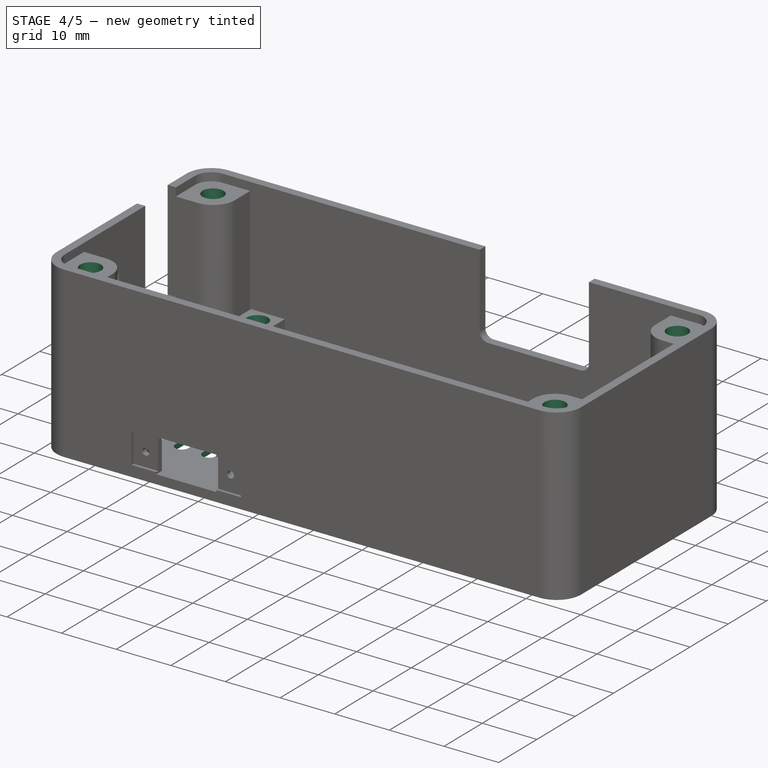
[diagram: stage 4 of 5 — iso view after this stage's code; geometry added in this stage tinted green]
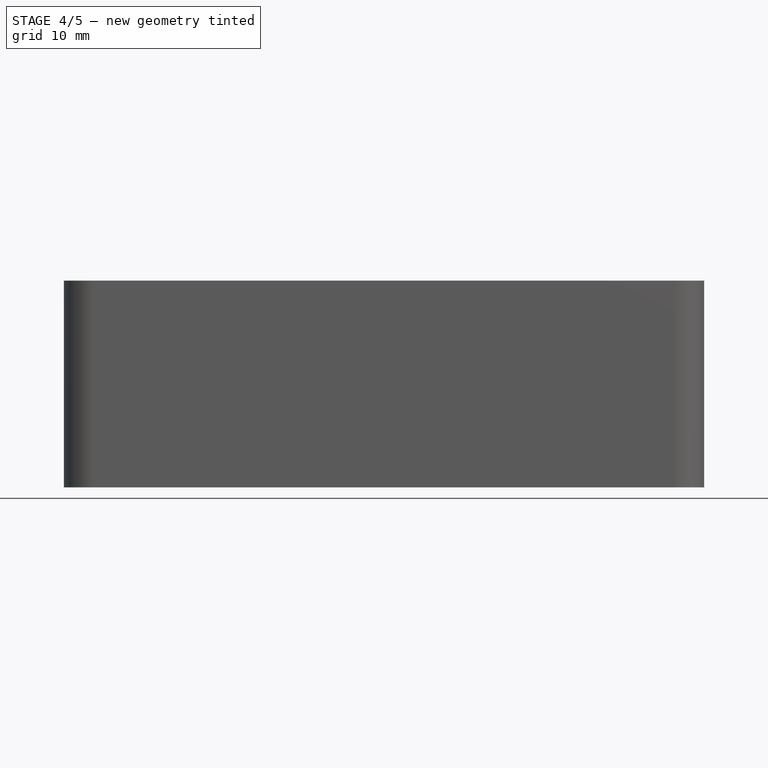
[diagram: stage 4 of 5 — front view after this stage's code; geometry added in this stage tinted green]
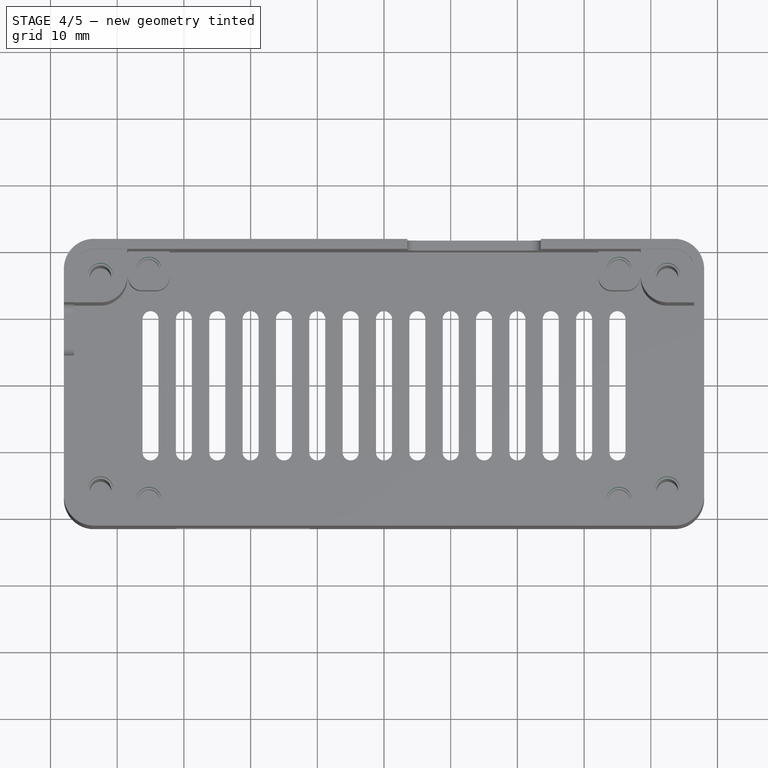
[diagram: stage 4 of 5 — top view after this stage's code; geometry added in this stage tinted green]
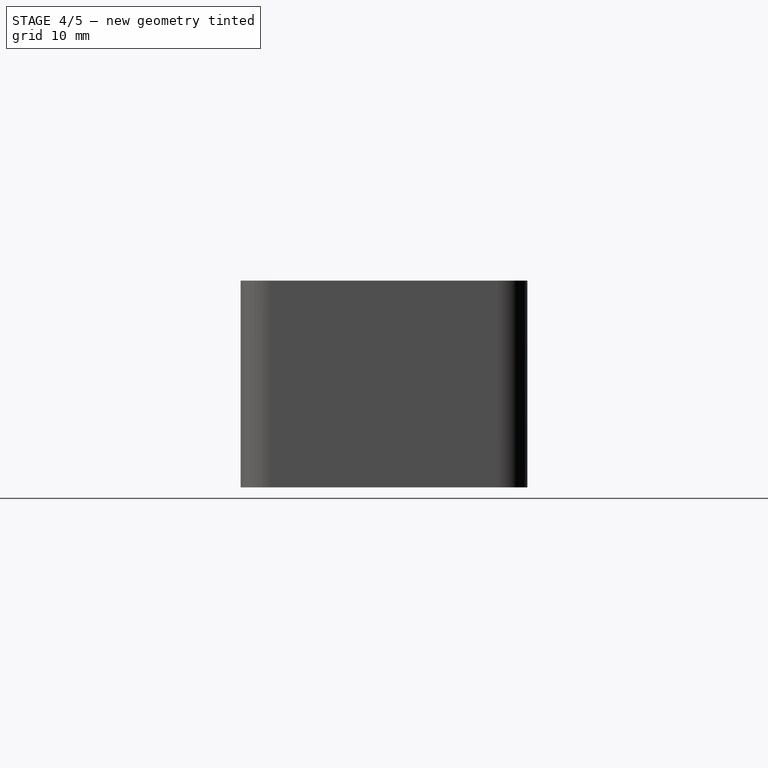
[diagram: stage 4 of 5 — right view after this stage's code; geometry added in this stage tinted green]
FEATURE [Sketcher::SketchObject] Sketch011
  ExternalGeometry = -> [Pocket006]
  FullyConstrained = true
  MapMode = 5
  Placement = pos=(0,0,29.5) rot=(0,0,1;0rad)
  Support = -> [Pocket006]
  sketch-geometry (4):
    g0: Circle CenterX=42.5 CenterY=16 CenterZ=0 NormalX=0 NormalY=0 NormalZ=1 AngleXU=0 Radius=1.9
    g1: Circle CenterX=42.5 CenterY=-16 CenterZ=0 NormalX=0 NormalY=0 NormalZ=1 AngleXU=0 Radius=1.9
    g2: Circle CenterX=-42.5 CenterY=16 CenterZ=0 NormalX=0 NormalY=0 NormalZ=1 AngleXU=0 Radius=1.9
    g3: Circle CenterX=-42.5 CenterY=-16 CenterZ=0 NormalX=0 NormalY=0 NormalZ=1 AngleXU=0 Radius=1.9
  constraints (8):
    c: Symmetric(g3,g1,g-2)
    c: Symmetric(g2,g0,g-2)
    c: Equal(g2,g3)
    c: Equal(g3,g1)
    c: Equal(g1,g0)
    c: Coincident(g0,g-3)
    c: Diameter(g0) = 3.8
    c: Symmetric(g3,g2,g-1)
FEATURE [PartDesign::Pocket] Pocket007
  BaseFeature = -> Pocket006
  Direction = (0,0,-1)
  Length = 4
  Length2 = 5
  Profile = -> Sketch011
  ReferenceAxis = -> Sketch011 [N_Axis]
  Type = 0
FEATURE [Sketcher::SketchObject] Sketch012
  ExternalGeometry = -> [Pocket007]
  FullyConstrained = true
  MapMode = 5
  Placement = pos=(0,0,10) rot=(0,0,1;0rad)
  Support = -> [Pocket007]
  sketch-geometry (4):
    g0: Circle CenterX=-35.25 CenterY=17.25 CenterZ=0 NormalX=0 NormalY=0 NormalZ=1 AngleXU=0 Radius=1.9
    g1: Circle CenterX=35.25 CenterY=17.25 CenterZ=0 NormalX=0 NormalY=0 NormalZ=1 AngleXU=0 Radius=1.9
    g2: Circle CenterX=-35.25 CenterY=-17.25 CenterZ=0 NormalX=0 NormalY=0 NormalZ=1 AngleXU=0 Radius=1.9
    g3: Circle CenterX=35.25 CenterY=-17.25 CenterZ=0 NormalX=0 NormalY=0 NormalZ=1 AngleXU=0 Radius=1.9
  constraints (8):
    c: Symmetric(g3,g2,g-2)
    c: Symmetric(g0,g1,g-2)
    c: Symmetric(g0,g2,g-1)
    c: Coincident(g0,g-3)
    c: Equal(g0,g2)
    c: Equal(g2,g3)
    c: Equal(g3,g1)
    c: Diameter(g0) = 3.8
FEATURE [PartDesign::Pocket] Pocket008
  BaseFeature = -> Pocket007
  Direction = (0,0,-1)
  Length = 4
  Length2 = 5
  Profile = -> Sketch012
  ReferenceAxis = -> Sketch012 [N_Axis]
  Type = 0
FEATURE [Sketcher::SketchObject] Sketch013
  FullyConstrained = true
  MapMode = 5
  Placement = pos=(0,0,1) rot=(0,0,1;0rad)
  Support = -> [Pocket008]
  sketch-geometry (4):
    g0: ArcOfCircle CenterX=-35 CenterY=10 CenterZ=0 NormalX=0 NormalY=0 NormalZ=1 AngleXU=0 Radius=1.2 StartAngle=4e-16 EndAngle=3.14159
    g1: ArcOfCircle CenterX=-35 CenterY=-10 CenterZ=0 NormalX=0 NormalY=0 NormalZ=1 AngleXU=0 Radius=1.2 StartAngle=3.14159 EndAngle=6.28319
    g2: LineSegment StartX=-36.2 StartY=10 StartZ=0 EndX=-36.2 EndY=-10 EndZ=0
    g3: LineSegment StartX=-33.8 StartY=-10 StartZ=0 EndX=-33.8 EndY=10 EndZ=0
  constraints (9):
    c: Tangent(g0,g2) = -1.5708
    c: Tangent(g2,g1) = -1.5708
    c: Tangent(g1,g3) = -1.5708
    c: Tangent(g3,g0) = -1.5708
    c: Equal(g0,g1)
    c: Diameter(g0) = 2.4
    c: Symmetric(g0,g1,g-1)
    c: DistanceY(g3,g3) = 20
    c: DistanceX(g0,g-1) = 35
FEATURE [PartDesign::Pocket] Pocket009
  BaseFeature = -> Pocket008
  Direction = (0,0,-1)
  Length = 5
  Length2 = 5
  Profile = -> Sketch013
  ReferenceAxis = -> Sketch013 [N_Axis]
  Type = 0
FEATURE [PartDesign::LinearPattern] LinearPattern
  BaseFeature = -> Pocket009
  Direction = -> Sketch013 [H_Axis]
  Length = 70
  Occurrences = 15
  Originals = -> [Pocket009]
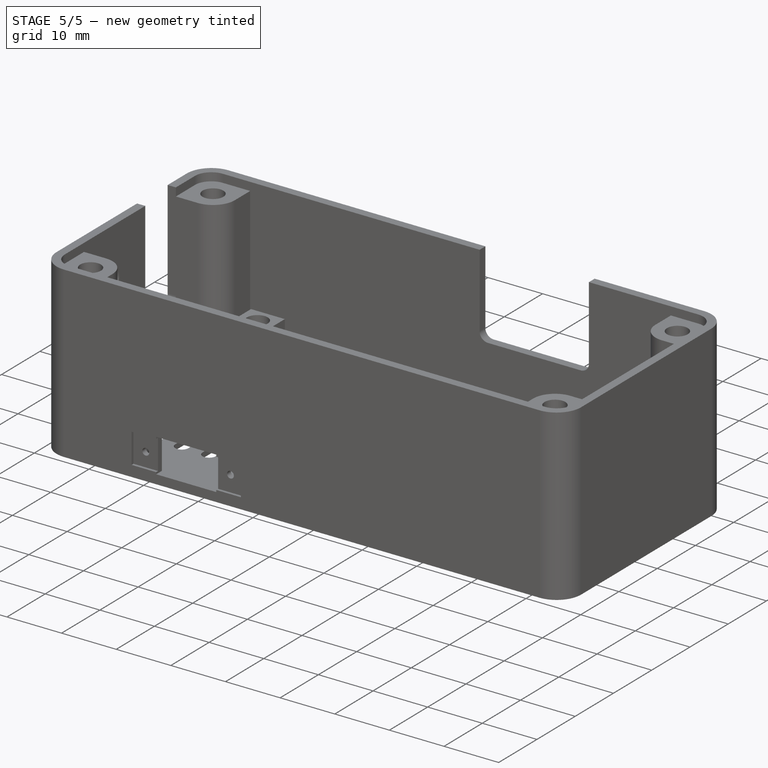
[diagram: stage 5 of 5 — iso view after this stage's code; geometry added in this stage tinted green]
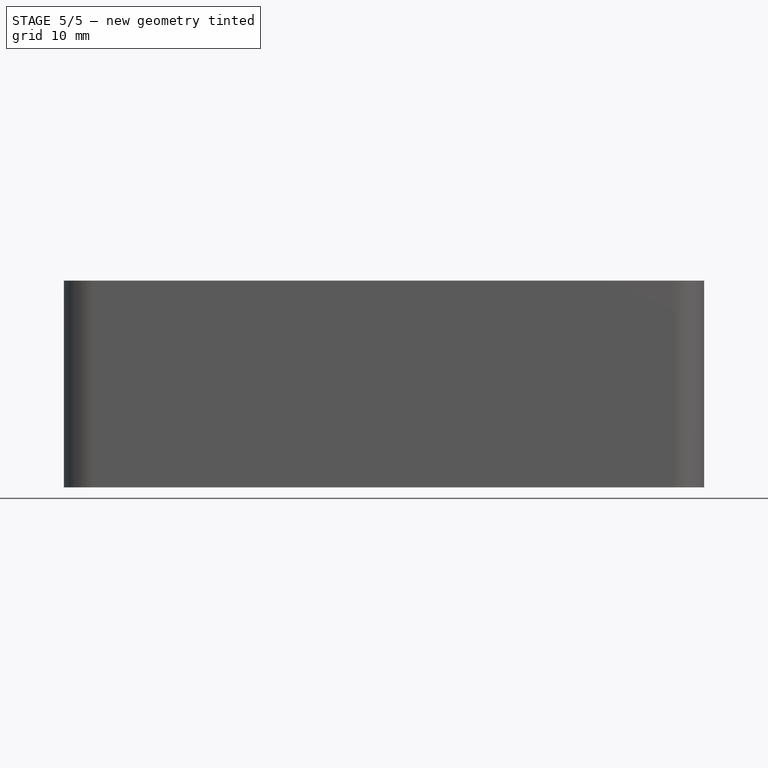
[diagram: stage 5 of 5 — front view after this stage's code; geometry added in this stage tinted green]
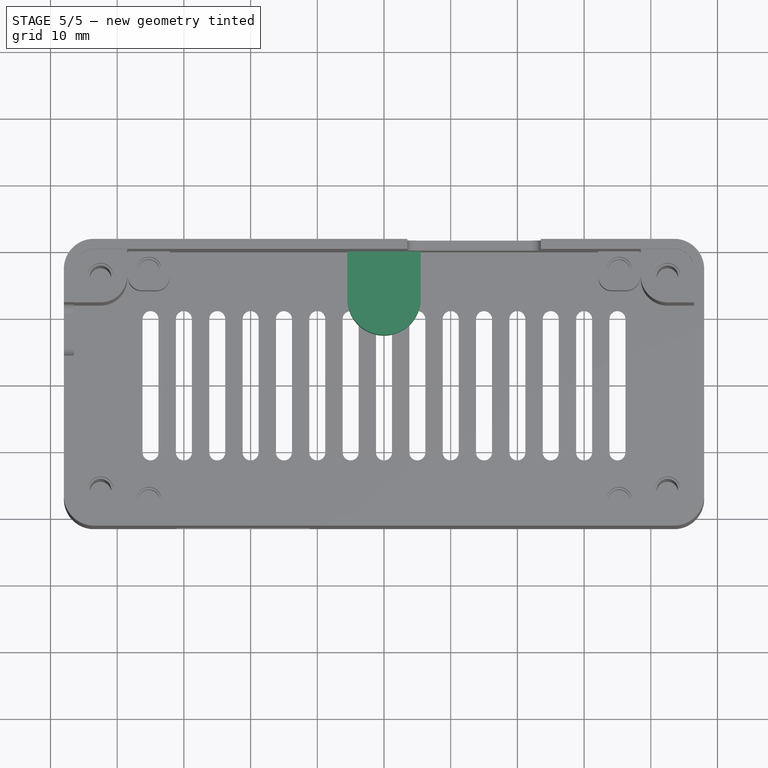
[diagram: stage 5 of 5 — top view after this stage's code; geometry added in this stage tinted green]
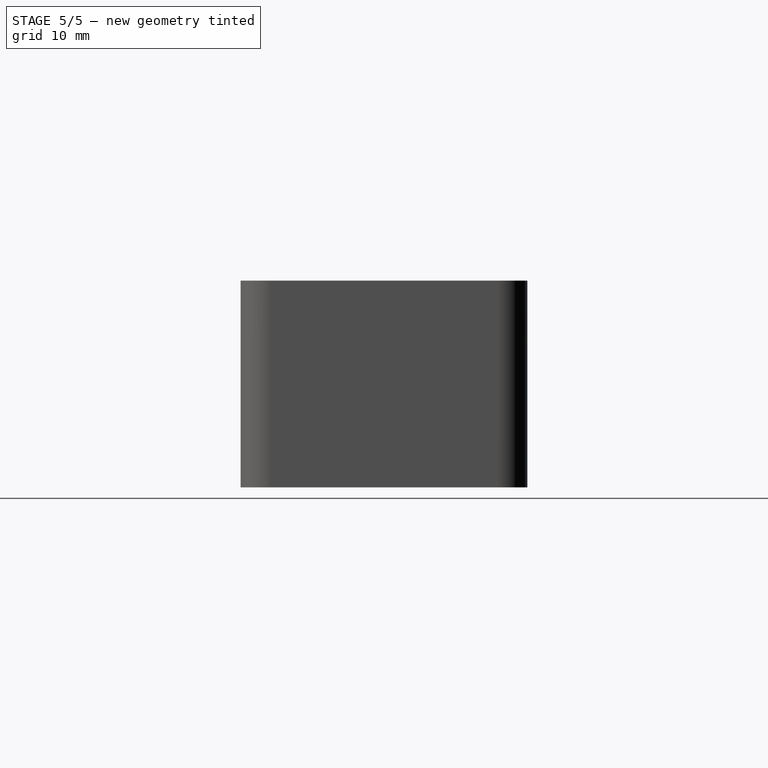
[diagram: stage 5 of 5 — right view after this stage's code; geometry added in this stage tinted green]
FEATURE [Sketcher::SketchObject] Sketch014
  ExternalGeometry = -> [LinearPattern]
  FullyConstrained = true
  MapMode = 5
  Placement = pos=(0,0,0) rot=(1,0,0;3.14159rad)
  Support = -> [LinearPattern]
  sketch-geometry (5):
    g0: ArcOfCircle CenterX=0 CenterY=-13 CenterZ=0 NormalX=0 NormalY=0 NormalZ=1 AngleXU=0 Radius=5.5 StartAngle=1e-15 EndAngle=3.14159
    g1: LineSegment StartX=-5.5 StartY=-13 StartZ=0 EndX=-5.5 EndY=-21.5 EndZ=0
    g2: LineSegment StartX=5.5 StartY=-21.5 StartZ=0 EndX=5.5 EndY=-13 EndZ=0
    g3: LineSegment StartX=5.5 StartY=-21.5 StartZ=0 EndX=-5.5 EndY=-21.5 EndZ=0
    g4: GeomPoint X=0 Y=-7.5 Z=0
  constraints (13):
    c: Tangent(g0,g1) = -1.5708
    c: Coincident(g1,g3) = -1.5708
    c: Coincident(g3,g2) = -1.5708
    c: Tangent(g2,g0) = -1.5708
    c: Diameter(g0) = 11
    c: Horizontal(g3)
    c: Vertical(g1)
    c: Vertical(g2)
    c: PointOnObject(g2,g-5)
    c: PointOnObject(g4,g0)
    c: Vertical(g4,g0)
    c: PointOnObject(g0,g-2)
    c: DistanceY(g2,g4) = 14
FEATURE [PartDesign::Pad] Pad003
  BaseFeature = -> LinearPattern
  Direction = (0,0,-1)
  Length = 7.5
  Length2 = 10
  Profile = -> Sketch014
  ReferenceAxis = -> Sketch014 [N_Axis]
  Reversed = true
  Type = 0
FEATURE [Sketcher::SketchObject] Sketch015
  ExternalGeometry = -> [Pad003]
  FullyConstrained = true
  MapMode = 5
  Placement = pos=(0,0,0) rot=(1,0,0;3.14159rad)
  Support = -> [Pad003]
  sketch-geometry (1):
    g0: Circle CenterX=0 CenterY=-13 CenterZ=0 NormalX=0 NormalY=0 NormalZ=1 AngleXU=0 Radius=4
  constraints (2):
    c: Diameter(g0) = 8
    c: Coincident(g-4,g0)
FEATURE [PartDesign::Pocket] Pocket010
  BaseFeature = -> Pad003
  Direction = (0,0,1)
  Length = 6
  Length2 = 5
  Profile = -> Sketch015
  ReferenceAxis = -> Sketch015 [N_Axis]
  Type = 0
FEATURE [Sketcher::SketchObject] Sketch016
  ExternalGeometry = -> [Pocket010,Sketch015]
  FullyConstrained = true
  MapMode = 5
  Placement = pos=(0,0,0) rot=(1,0,0;3.14159rad)
  Support = -> [Pocket010]
  sketch-geometry (1):
    g0: Circle CenterX=0 CenterY=-13 CenterZ=0 NormalX=0 NormalY=0 NormalZ=1 AngleXU=0 Radius=4.2
  constraints (2):
    c: Diameter(g0) = 8.4
    c: Coincident(g0,g-5)
FEATURE [PartDesign::Pocket] Pocket011
  BaseFeature = -> Pocket010
  Direction = (0,0,1)
  Length = 4
  Length2 = 5
  Profile = -> Sketch016
  ReferenceAxis = -> Sketch016 [N_Axis]
  Type = 0
FEATURE [PartDesign::Body] Body
  Group = -> [Sketch,Pad,Sketch001,Pocket,Sketch002,Pad001,Sketch003,Sketch004,Pad002,Sketch005,Pocket001,Sketch006,Pocket002,Sketch007,Pocket003,Sketch008,Pocket004,Sketch009,Pocket005,Sketch010,Pocket006,Sketch011,Pocket007,Sketch012,Pocket008,Sketch013,Pocket009,LinearPattern,Sketch014,Pad003,Sketch015,Pocket010,Sketch016,Pocket011]
  Origin = -> Origin
  Tip = -> Pocket011
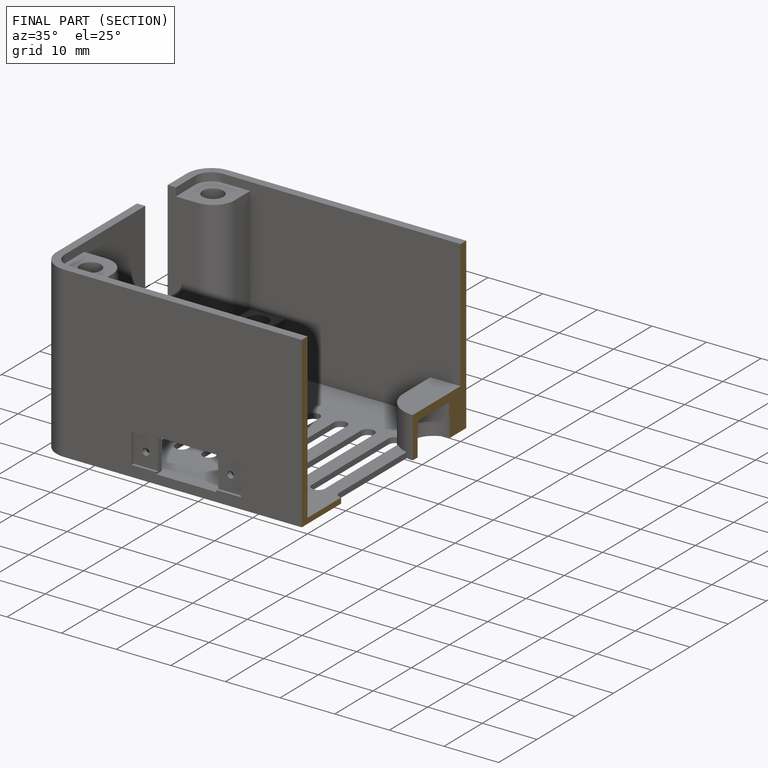
[diagram: finished part — half-section view (interior)]
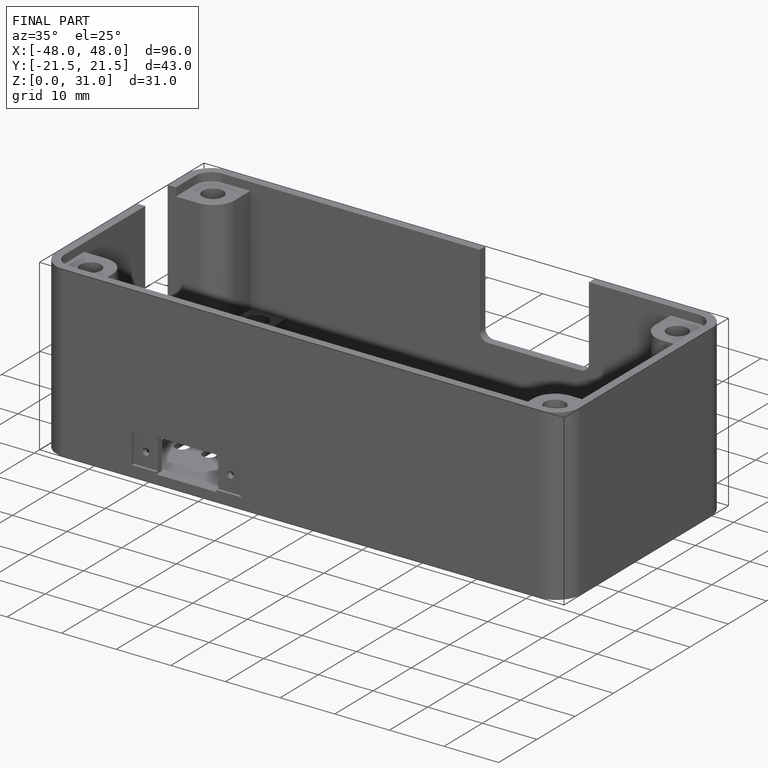
[diagram: finished part — iso view with bounding-box wireframe]
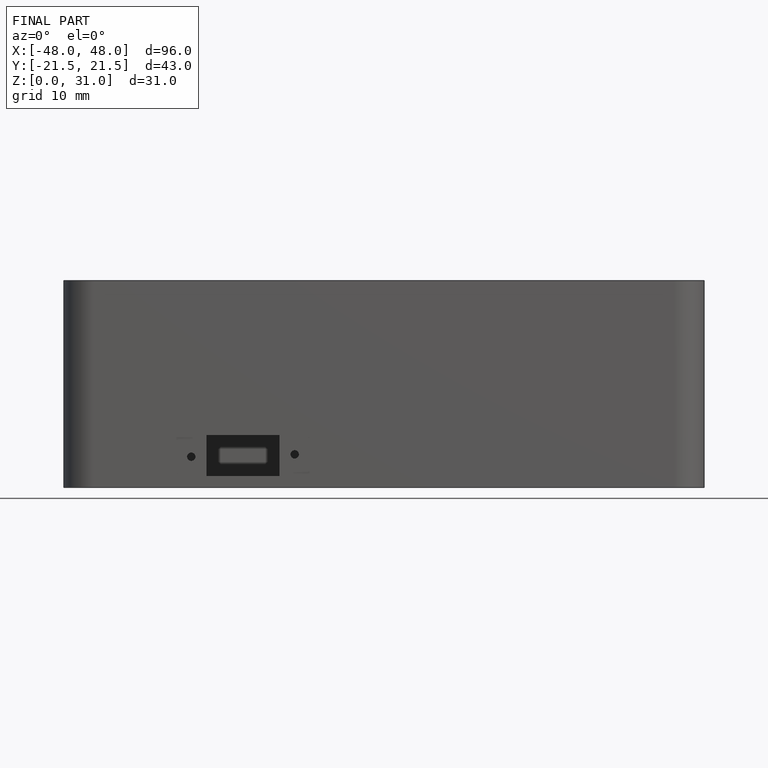
[diagram: finished part — front view with bounding-box wireframe]
